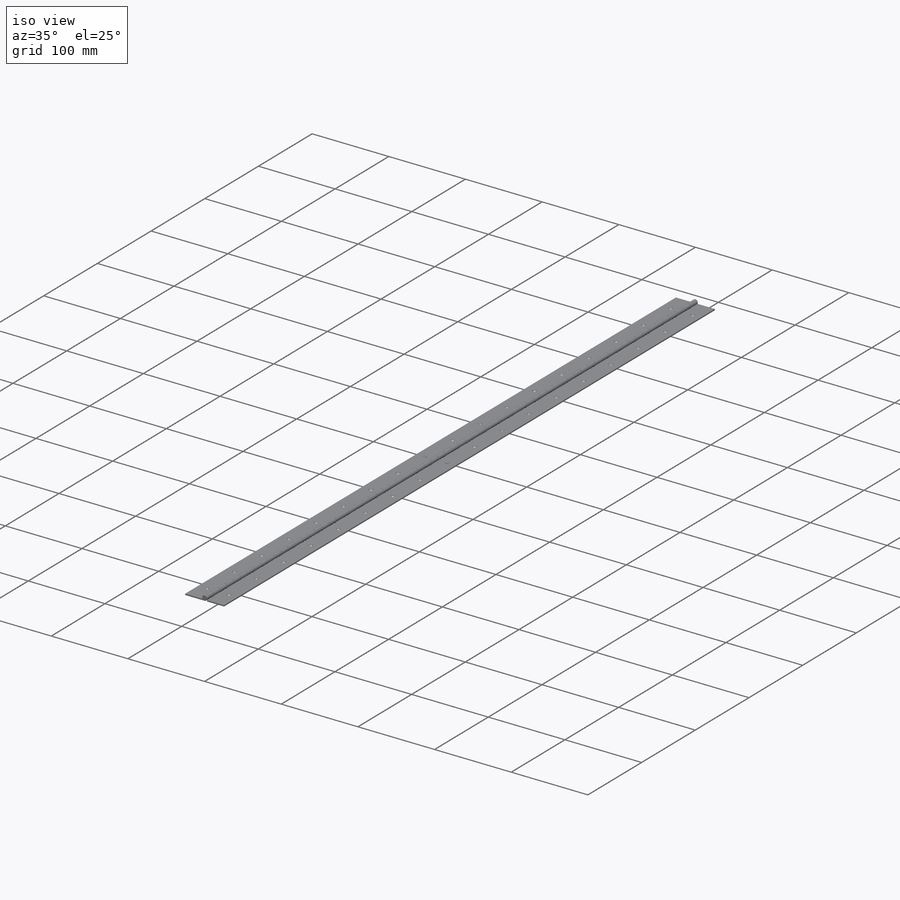
[diagram: iso view]
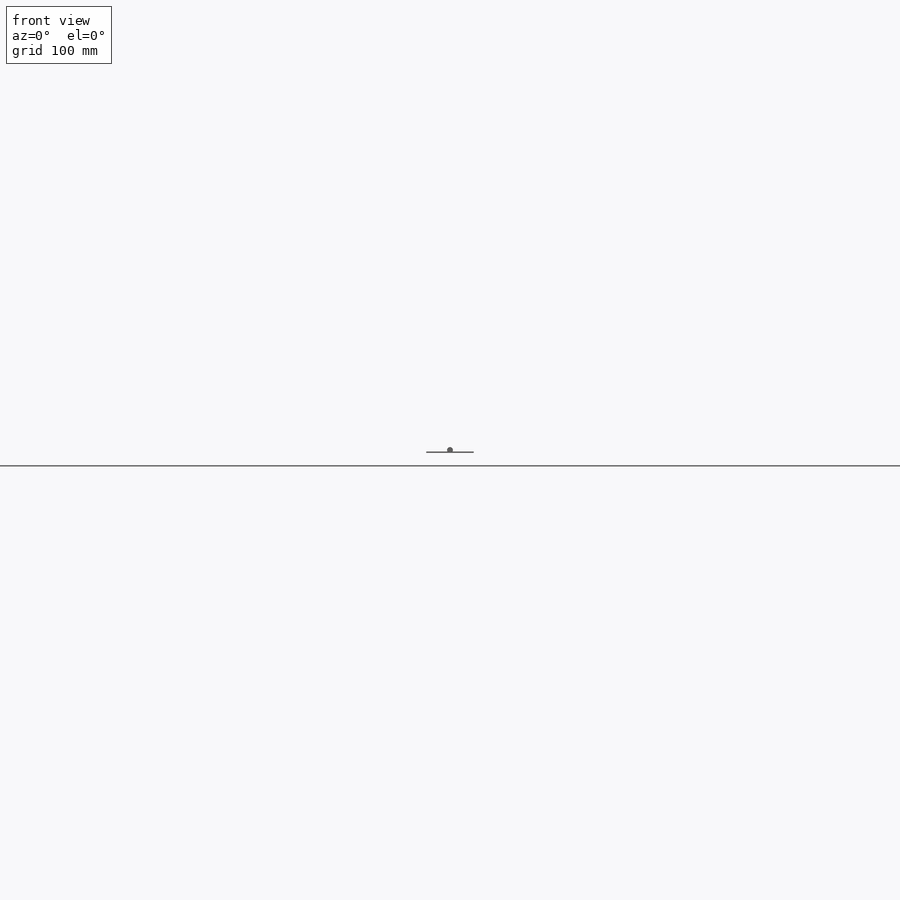
[diagram: front view]
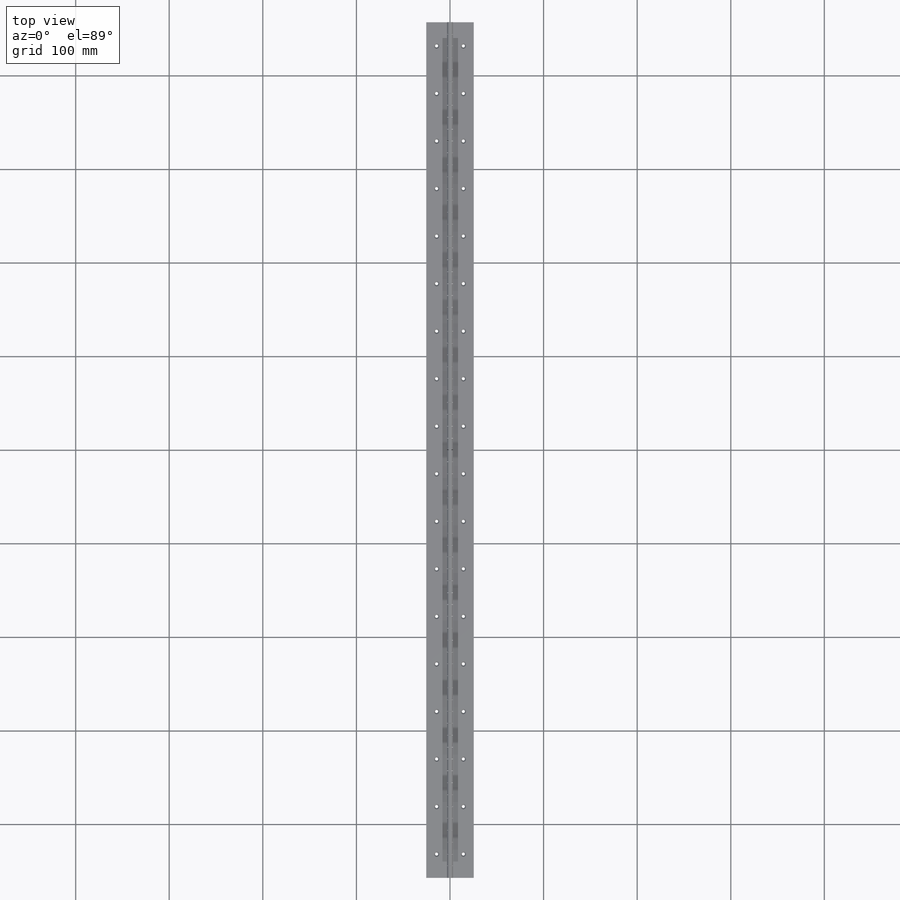
[diagram: top view]
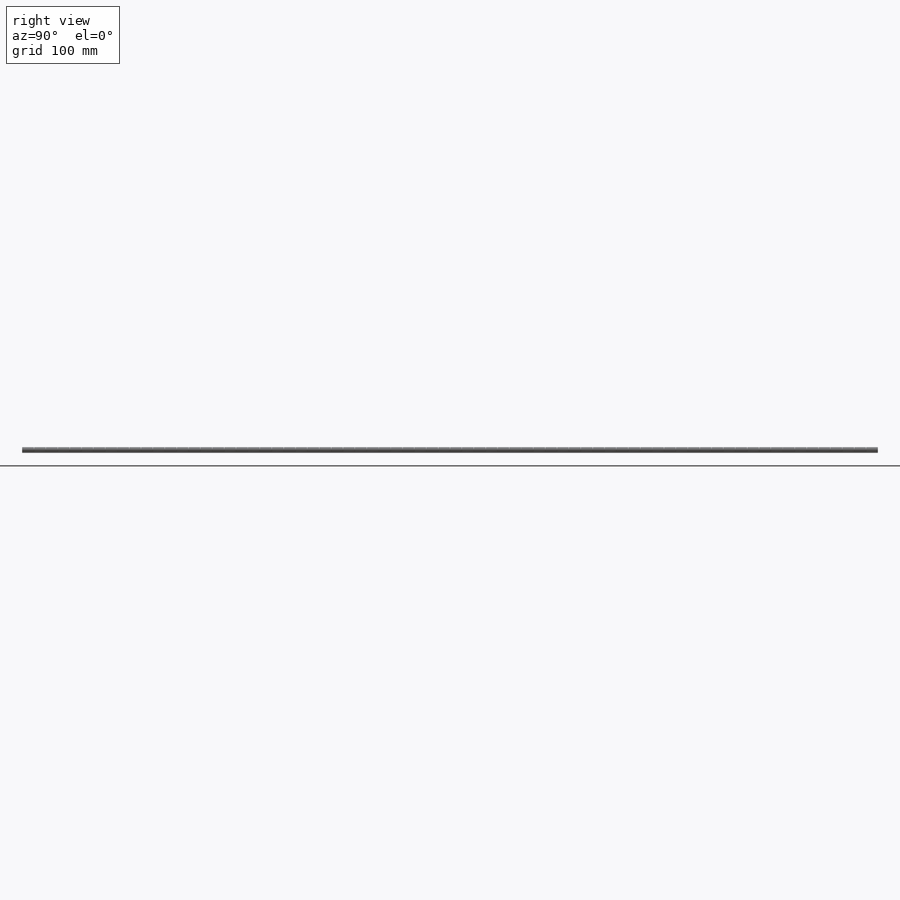
[diagram: right view]
SOLIDWORKS PART (.sldprt)
format: sldprt  version: not decoded by parser v0  size: 1,020,928 bytes
history: native  units: mm
features: sketch x8, pattern_linear x4, cut_extrude x3, extrude x2, material x1, plane x1, hole x1, mirror x1 (+14 scaffold rows collapsed)
feature tree (35):
  scaffold x14  (default folders/planes/origin — collapsed)
  material  "Material <not specified>"
  sketch  "Sketch2"  dims[D1=27.0002mm D2=27.0002mm open width=50.8mm length=914.4mm thickness=1.524mm D6=1.0mm D7=5.0mm]
  sketch  "Sketch3"  dims[pin dia=3.175mm D2=~4.182604mm]
  extrude  "Extrude1"  Depth=914.4mm length=914.4mm
  sketch  "Sketch4"  dims[D1=0.254mm knuckle length=12.7mm]
  cut_extrude  "Cut-Extrude1"  [1 undecoded]
  pattern_linear  "LPattern1"  Count1=71 Count2=1 Spacing1=50mm
  sketch  "Sketch5"
  cut_extrude  "Cut-Extrude2"  Depth=12.7mm knuckle length=12.7mm
  pattern_linear  "LPattern2"  Count1=36 Count2=1 Spacing1=25.4mm Spacing2=50mm spacing=25.4mm
  plane  "Plane1"
  sketch  "Sketch7"
  sketch  "Sketch9"  dims[pin dia=3.1242mm]
  extrude  "Extrude2"  [1 undecoded]
  cut_extrude  "Cut-Extrude3"  Depth=12.7mm knuckle length=12.7mm
  pattern_linear  "LPattern3"  Count1=36 Count2=1 Spacing1=50mm
  hole  "CSK for #4 Flat Head Machine Screw1"  Diameter=3.2639mm Depth=1.524mm
  sketch  "Sketch12"  dims[D1=25.4mm Hole Offset=14.2875mm D2=25.4mm]
  sketch  "Sketch11"  dims[hole-wizard template sketch: 55 standard entries collapsed; hole parameters kept: c17.Thru Hole Depth=1.524mm c17.Near C'Sink Dia.=5.715mm c17.D4=~3.666174mm c17.Near C'Sink Angle=82.0deg]
  mirror  "Mirror1"
  pattern_linear  "LPattern5"  Count1=18 Count2=1 Spacing1=50.8mm Spacing2=50mm hex flats=14.2748mm hex flats/2=7.366mm
decode coverage: 14 of 19 modeling features carry decoded parameters
note: ~ marks probable driven/reference dimensions
note: 2 parameter values undecoded
note: suppression state not decoded; provenance and decode notes live in map.json
